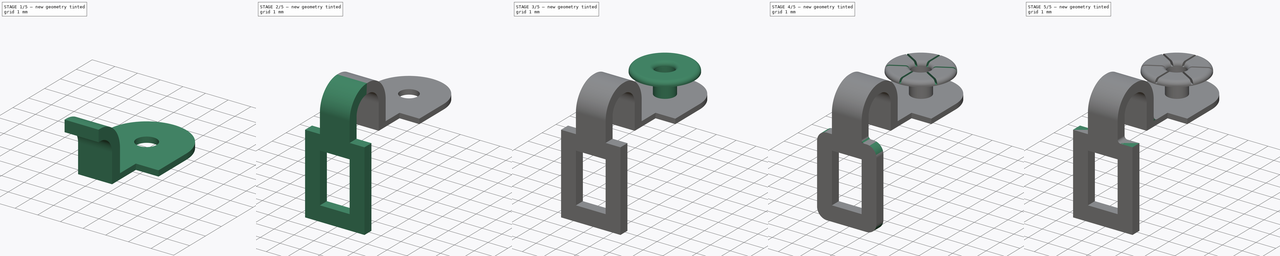
[diagram: build sequence overview — one tinted view per stage of 5, left to right]
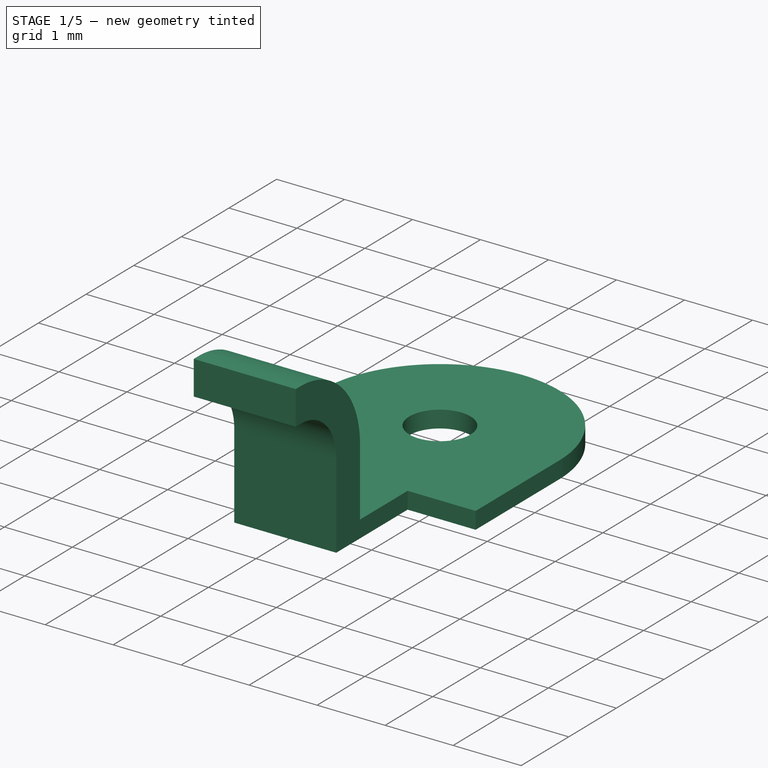
[diagram: stage 1 of 5 — iso view after this stage's code; geometry added in this stage tinted green]
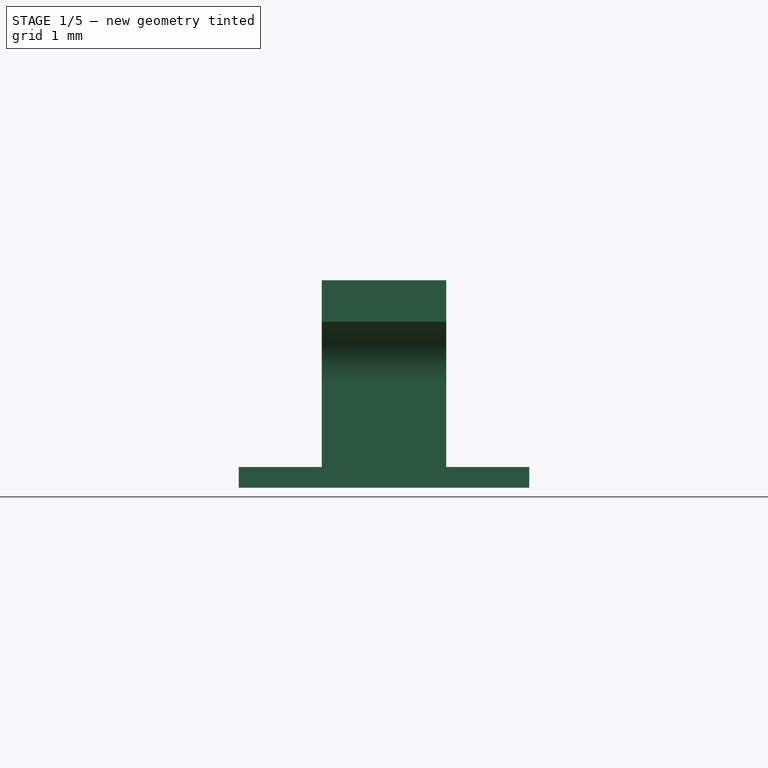
[diagram: stage 1 of 5 — front view after this stage's code; geometry added in this stage tinted green]
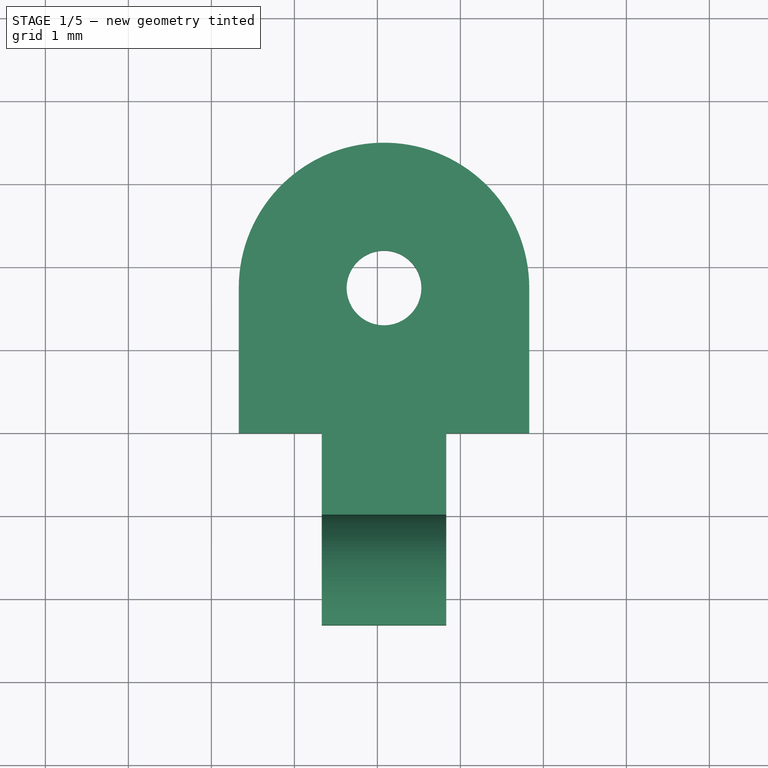
[diagram: stage 1 of 5 — top view after this stage's code; geometry added in this stage tinted green]
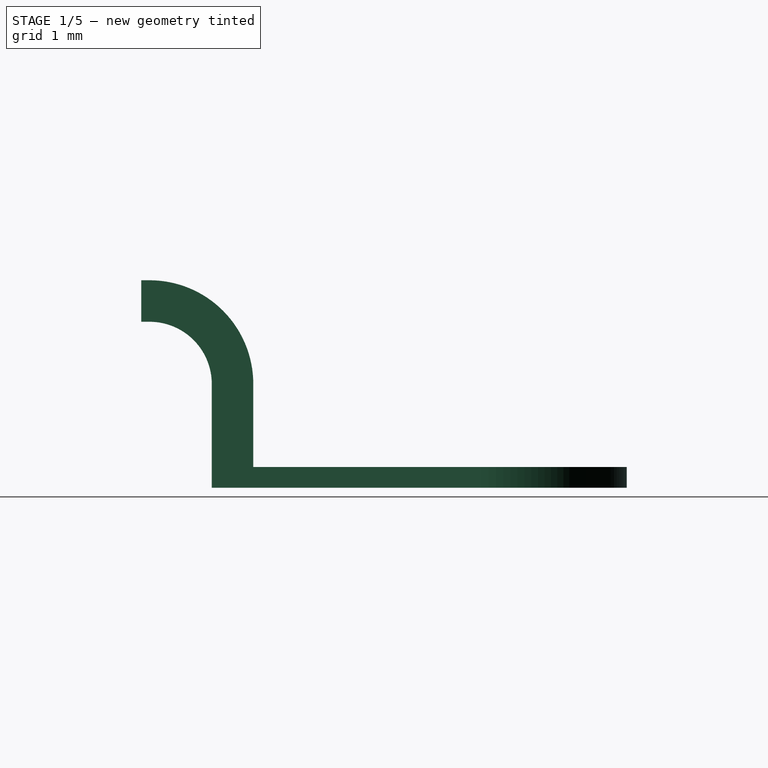
[diagram: stage 1 of 5 — right view after this stage's code; geometry added in this stage tinted green]
FCSTD DOCUMENT  (FreeCAD 0.19R16699 (Git))
Label: RV16_Terminal_Type_10
License: All rights reserved
LicenseURL: http://en.wikipedia.org/wiki/All_rights_reserved
objects: Sketcher::SketchObject×7, PartDesign::Fillet×6, PartDesign::Pad×5, PartDesign::FeaturePython×2, PartDesign::Pocket×2, PartDesign::ShapeBinder×1, PartDesign::Body×1, App::Part×1
note: 31 computed .brp shape members not serialized (recipe doc carries the construction recipe); baked Part::Feature solids carry a one-line shape summary decoded from their .brp

FEATURE [PartDesign::ShapeBinder] ShapeBinder002
  TraceSupport = false
FEATURE [Sketcher::SketchObject] Sketch014
  ExternalGeometry = -> [ShapeBinder002]
  MapMode = 5
  Placement = pos=(0,0,-1) rot=(1,0,0;3.14159rad)
  Support = -> [ShapeBinder002]
  sketch-geometry (12):
    g0: ArcOfCircle CenterX=5.08 CenterY=8.25 CenterZ=0 NormalX=0 NormalY=0 NormalZ=1 AngleXU=0 Radius=1.75 StartAngle=3.14159 EndAngle=6.28319
    g1: GeomPoint X=5.08 Y=6.5 Z=0
    g2: LineSegment StartX=3.33 StartY=8.25 StartZ=0 EndX=3.33 EndY=10 EndZ=0
    g3: LineSegment StartX=6.83 StartY=10 StartZ=0 EndX=6.83 EndY=8.25 EndZ=0
    g4: Circle CenterX=5.08 CenterY=8.25 CenterZ=0 NormalX=0 NormalY=0 NormalZ=1 AngleXU=0 Radius=0.45
    g5: LineSegment StartX=3.33 StartY=10 StartZ=0 EndX=4.33 EndY=10 EndZ=0
    g6: LineSegment StartX=4.33 StartY=10 StartZ=0 EndX=4.33 EndY=10.5 EndZ=0
    g7: LineSegment StartX=4.33 StartY=10.5 StartZ=0 EndX=4.33 EndY=11.5 EndZ=0
    g8: LineSegment StartX=4.33 StartY=11.5 StartZ=0 EndX=5.83 EndY=11.5 EndZ=0
    g9: LineSegment StartX=5.83 StartY=11.5 StartZ=0 EndX=5.83 EndY=10.5 EndZ=0
    g10: LineSegment StartX=5.83 StartY=10.5 StartZ=0 EndX=5.83 EndY=10 EndZ=0
    g11: LineSegment StartX=5.83 StartY=10 StartZ=0 EndX=6.83 EndY=10 EndZ=0
  constraints (31):
    c: Coincident(g0,g-3)
    c: Horizontal(g0,g0)
    c: Horizontal(g0,g0)
    c: PointOnObject(g1,g0)
    c: Vertical(g1,g0)
    c: Tangent(g0,g2) = 1.5708
    c: Coincident(g3,g0)
    c: Vertical(g3)
    c: DistanceY(g1,g3) = 3.5
    c: DistanceX(g2,g3) = 3.5
    c: Coincident(g4,g0)
    c: Radius(g4) = 0.45
    c: Coincident(g5,g2)
    c: Horizontal(g5)
    c: Coincident(g6,g5)
    c: Vertical(g6)
    c: Coincident(g7,g6)
    c: Vertical(g7)
    c: Coincident(g8,g7)
    c: Horizontal(g8)
    c: Coincident(g9,g8)
    c: Vertical(g9)
    c: Coincident(g10,g9)
    c: Coincident(g11,g10)
    c: Coincident(g11,g3)
    c: Horizontal(g11)
    c: Equal(g11,g5)
    c: DistanceY(g9,g9) = 1
    c: Coincident(g6,g-4)
    c: Equal(g2,g3)
    c: Coincident(g9,g-4)
FEATURE [PartDesign::Pad] Pad010
  Length = 0.25
  Length2 = 100
  Profile = -> Sketch014
  Type = 0
FEATURE [Sketcher::SketchObject] Sketch015
  ExternalGeometry = -> [Pad010]
  MapMode = 5
  Placement = pos=(0,0,-1) rot=(0,0,1;0rad)
  Support = -> [Pad010]
  sketch-geometry (4):
    g0: LineSegment StartX=4.33 StartY=-11.5 StartZ=0 EndX=5.83 EndY=-11.5 EndZ=0
    g1: LineSegment StartX=5.83 StartY=-11.5 StartZ=0 EndX=5.83 EndY=-11 EndZ=0
    g2: LineSegment StartX=5.83 StartY=-11 StartZ=0 EndX=4.33 EndY=-11 EndZ=0
    g3: LineSegment StartX=4.33 StartY=-11 StartZ=0 EndX=4.33 EndY=-11.5 EndZ=0
  constraints (11):
    c: Coincident(g0,g1)
    c: Coincident(g1,g2)
    c: Coincident(g2,g3)
    c: Coincident(g3,g0)
    c: Horizontal(g0)
    c: Horizontal(g2)
    c: Vertical(g1)
    c: Vertical(g3)
    c: Coincident(g0,g-4)
    c: DistanceY(g1,g1) = 0.5
    c: PointOnObject(g1,g-5)
FEATURE [PartDesign::Pad] Pad011
  BaseFeature = -> Pad010
  Length = 1
  Length2 = 100
  Profile = -> Sketch015
  Type = 0
FEATURE [PartDesign::FeaturePython] Bend  # WARN: FeaturePython — macro-defined, semantics opaque (R4)
  AutoMiter = true
  BaseFeature = -> Pad011
  BendType = 0
  LengthList = [0.1]
  ReliefFactor = 0.7
  UseReliefFactor = false
  angle = -90
  baseObject = -> Pad011 [Face17]
  bendAList = [-90]
  extend1 = 0
  extend2 = 0
  gap1 = 0
  gap2 = 0
  invert = false
  kfactor = 0.5
  length = 0.1
  miterangle1 = 0
  miterangle2 = 0
  offset = 0
  radius = 0.75
  reliefType = 0
  reliefd = 1
  reliefw = 0.8
  sketchflip = false
  sketchinvert = false
  unfold = false
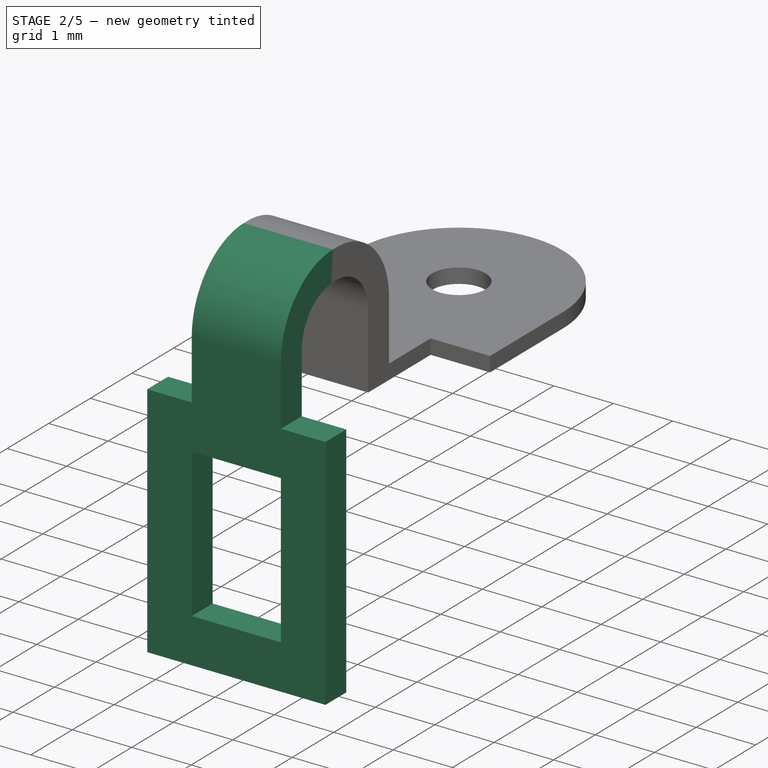
[diagram: stage 2 of 5 — iso view after this stage's code; geometry added in this stage tinted green]
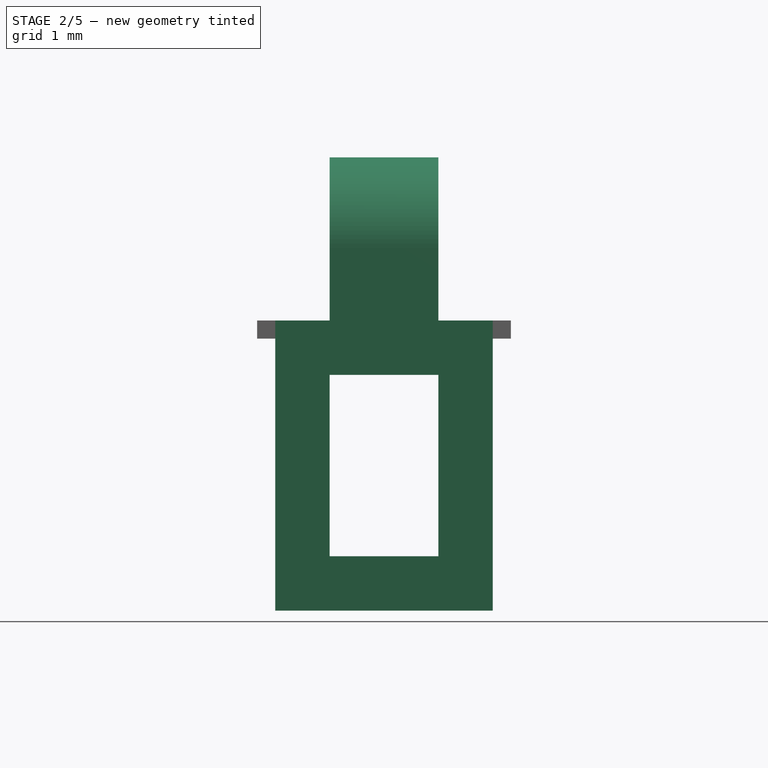
[diagram: stage 2 of 5 — front view after this stage's code; geometry added in this stage tinted green]
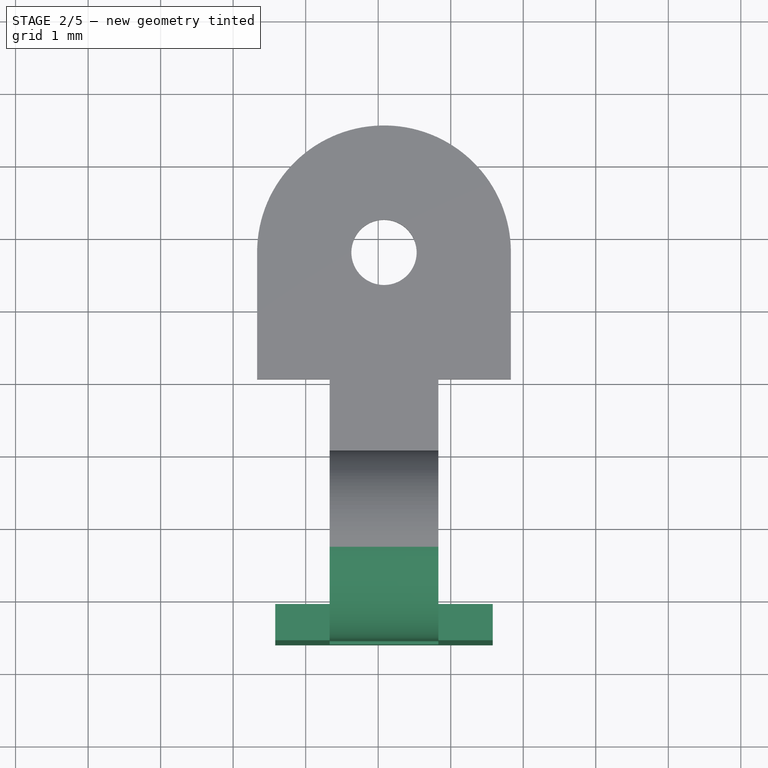
[diagram: stage 2 of 5 — top view after this stage's code; geometry added in this stage tinted green]
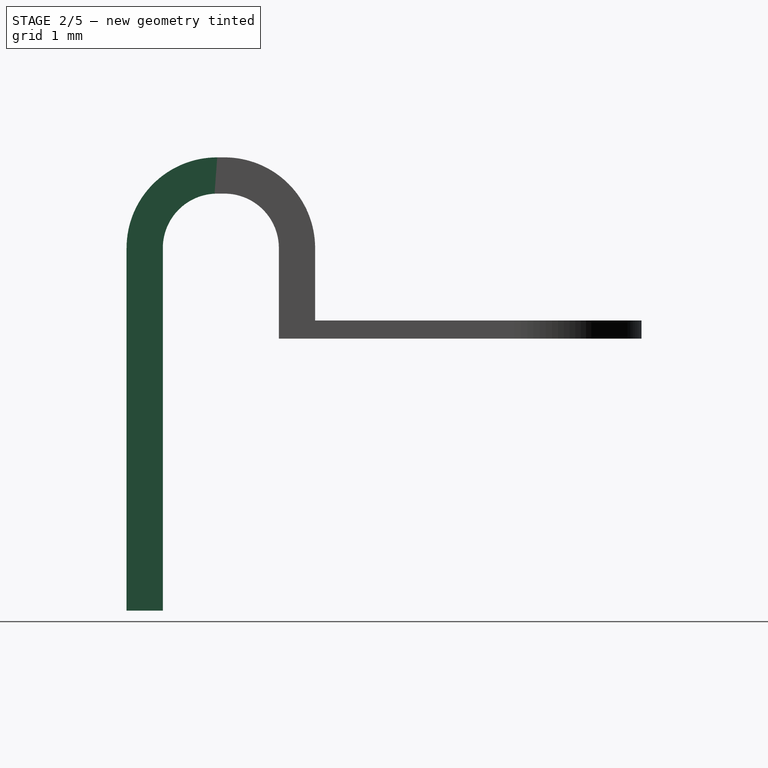
[diagram: stage 2 of 5 — right view after this stage's code; geometry added in this stage tinted green]
FEATURE [PartDesign::FeaturePython] Bend001  # WARN: FeaturePython — macro-defined, semantics opaque (R4)
  AutoMiter = true
  BaseFeature = -> Bend
  BendType = 0
  LengthList = [1]
  ReliefFactor = 0.7
  UseReliefFactor = false
  angle = -90
  baseObject = -> Bend [Face3]
  bendAList = [-90]
  extend1 = 0
  extend2 = 0
  gap1 = 0
  gap2 = 0
  invert = false
  kfactor = 0.5
  length = 1
  miterangle1 = 0
  miterangle2 = 0
  offset = 0
  radius = 0.75
  reliefType = 0
  reliefd = 1
  reliefw = 0.8
  sketchflip = false
  sketchinvert = false
  unfold = false
FEATURE [Sketcher::SketchObject] Sketch016
  ExternalGeometry = -> [Bend001]
  MapMode = 5
  Placement = pos=(0,-1e-16,-1) rot=(1,0,0;3.14159rad)
  Support = -> [Bend001]
  sketch-geometry (12):
    g0: LineSegment StartX=3.58 StartY=13.1 StartZ=0 EndX=6.58 EndY=13.1 EndZ=0
    g1: LineSegment StartX=6.58 StartY=13.1 StartZ=0 EndX=6.58 EndY=13.6 EndZ=0
    g2: LineSegment StartX=6.58 StartY=13.6 StartZ=0 EndX=3.58 EndY=13.6 EndZ=0
    g3: LineSegment StartX=3.58 StartY=13.6 StartZ=0 EndX=3.58 EndY=13.1 EndZ=0
    g4: LineSegment [constr] StartX=5.83 StartY=13.6 StartZ=0 EndX=4.33 EndY=13.1 EndZ=0
    g5: LineSegment [constr] StartX=5.83 StartY=13.1 StartZ=0 EndX=4.33 EndY=13.6 EndZ=0
    g6: GeomPoint X=5.08 Y=13.35 Z=0
    g7: GeomPoint X=5.08 Y=13.35 Z=0
    g8: LineSegment [constr] StartX=3.58 StartY=13.6 StartZ=0 EndX=6.58 EndY=13.1 EndZ=0
    g9: LineSegment [constr] StartX=6.58 StartY=13.6 StartZ=0 EndX=3.58 EndY=13.1 EndZ=0
    g10: GeomPoint X=5.08 Y=13.35 Z=0
    g11: GeomPoint X=5.08 Y=13.35 Z=0
  constraints (25):
    c: Coincident(g0,g1)
    c: Coincident(g1,g2)
    c: Coincident(g2,g3)
    c: Coincident(g3,g0)
    c: Horizontal(g0)
    c: Horizontal(g2)
    c: Vertical(g1)
    c: Vertical(g3)
    c: DistanceX(g2,g2) = 3
    c: PointOnObject(g-4,g2)
    c: PointOnObject(g-5,g0)
    c: Coincident(g4,g-4)
    c: Coincident(g4,g-6)
    c: Coincident(g5,g-5)
    c: Coincident(g5,g-6)
    c: PointOnObject(g6,g4)
    c: PointOnObject(g7,g5)
    c: Coincident(g6,g7)
    c: Coincident(g8,g2)
    c: Coincident(g8,g0)
    c: Coincident(g9,g1)
    c: Coincident(g9,g0)
    c: PointOnObject(g10,g9)
    c: Coincident(g11,g10)
    c: Coincident(g10,g6)
FEATURE [PartDesign::Pad] Pad012
  BaseFeature = -> Bend001
  Length = 4
  Length2 = 100
  Profile = -> Sketch016
  Type = 0
FEATURE [Sketcher::SketchObject] Sketch017
  ExternalGeometry = -> [Pad012]
  MapMode = 5
  Placement = pos=(0,-13.6,3e-15) rot=(1,0,0;1.5708rad)
  Support = -> [Pad012]
  sketch-geometry (12):
    g0: LineSegment [constr] StartX=6.58 StartY=-1 StartZ=0 EndX=3.58 EndY=-5 EndZ=0
    g1: LineSegment [constr] StartX=6.58 StartY=-5 StartZ=0 EndX=3.58 EndY=-1 EndZ=0
    g2: GeomPoint X=5.08 Y=-3 Z=0
    g3: GeomPoint X=5.08 Y=-3 Z=0
    g4: LineSegment StartX=4.33 StartY=-1.75 StartZ=0 EndX=5.83 EndY=-1.75 EndZ=0
    g5: LineSegment StartX=5.83 StartY=-1.75 StartZ=0 EndX=5.83 EndY=-4.25 EndZ=0
    g6: LineSegment StartX=5.83 StartY=-4.25 StartZ=0 EndX=4.33 EndY=-4.25 EndZ=0
    g7: LineSegment StartX=4.33 StartY=-4.25 StartZ=0 EndX=4.33 EndY=-1.75 EndZ=0
    g8: LineSegment [constr] StartX=5.83 StartY=-1.75 StartZ=0 EndX=4.33 EndY=-4.25 EndZ=0
    g9: LineSegment [constr] StartX=5.83 StartY=-4.25 StartZ=0 EndX=4.33 EndY=-1.75 EndZ=0
    g10: GeomPoint X=5.08 Y=-3 Z=0
    g11: GeomPoint X=5.08 Y=-3 Z=0
  constraints (25):
    c: Coincident(g0,g-6)
    c: Coincident(g0,g-4)
    c: Coincident(g1,g-5)
    c: Coincident(g1,g-8)
    c: PointOnObject(g2,g0)
    c: PointOnObject(g3,g1)
    c: Coincident(g2,g3)
    c: Coincident(g4,g5)
    c: Coincident(g5,g6)
    c: Coincident(g6,g7)
    c: Coincident(g7,g4)
    c: Horizontal(g4)
    c: Horizontal(g6)
    c: Vertical(g5)
    c: Vertical(g7)
    c: Coincident(g8,g4)
    c: Coincident(g8,g6)
    c: Coincident(g9,g5)
    c: Coincident(g9,g4)
    c: PointOnObject(g10,g9)
    c: PointOnObject(g11,g8)
    c: Coincident(g11,g10)
    c: Coincident(g10,g2)
    c: DistanceX(g4,g4) = 1.5
    c: DistanceY(g5,g5) = 2.5
FEATURE [PartDesign::Pocket] Pocket004
  BaseFeature = -> Pad012
  Length = 5
  Length2 = 100
  Profile = -> Sketch017
  Type = 2
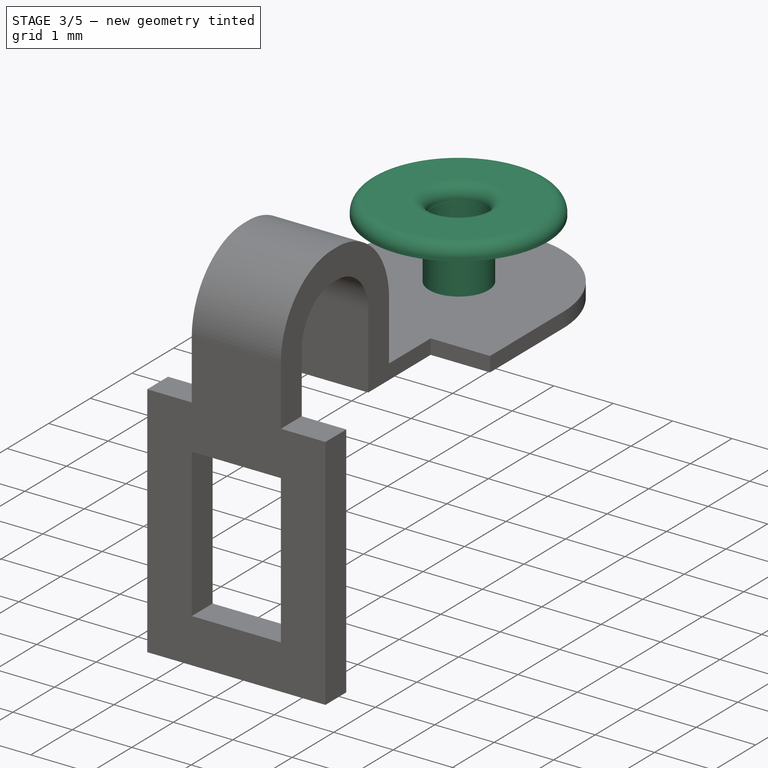
[diagram: stage 3 of 5 — iso view after this stage's code; geometry added in this stage tinted green]
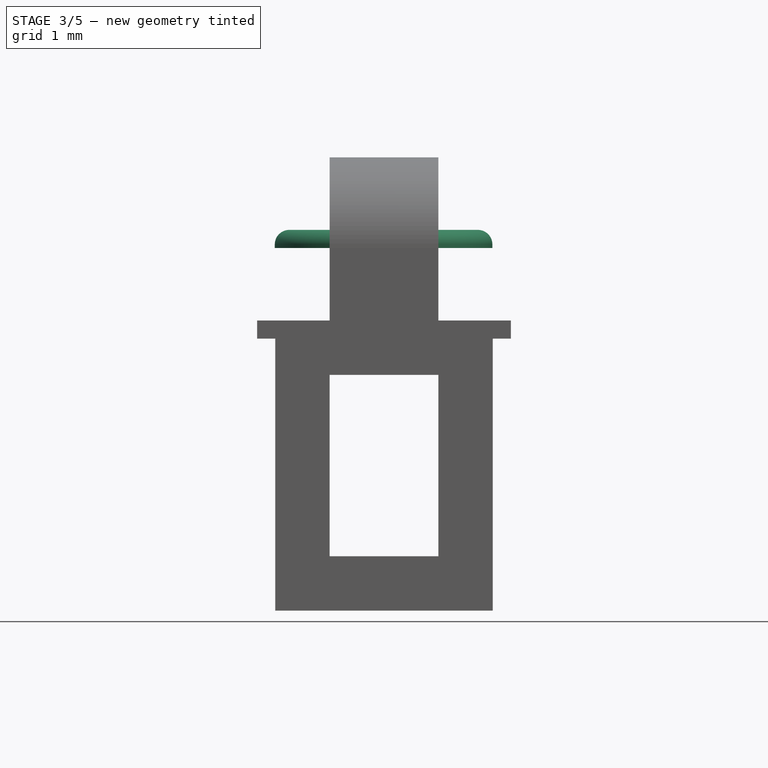
[diagram: stage 3 of 5 — front view after this stage's code; geometry added in this stage tinted green]
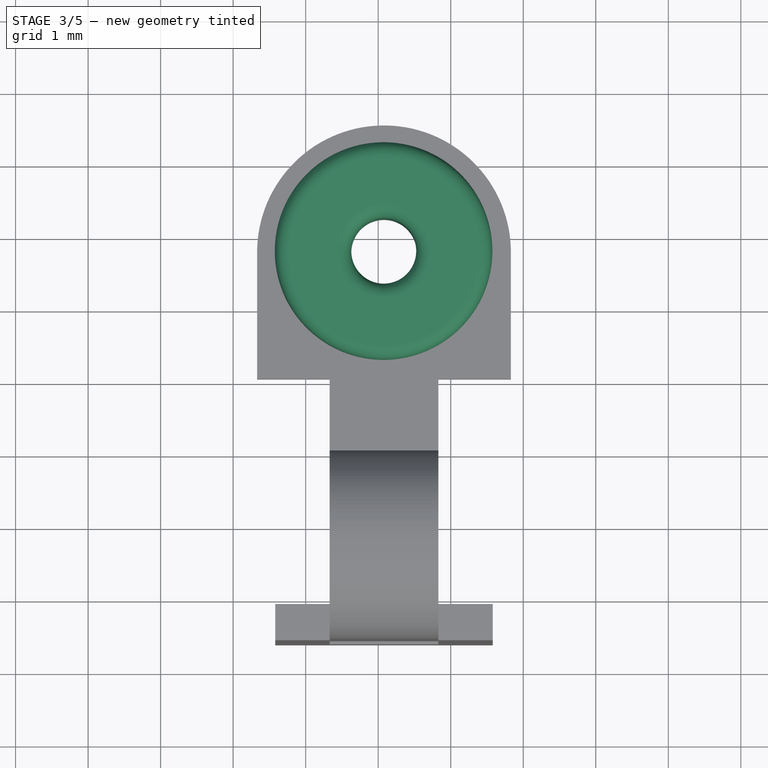
[diagram: stage 3 of 5 — top view after this stage's code; geometry added in this stage tinted green]
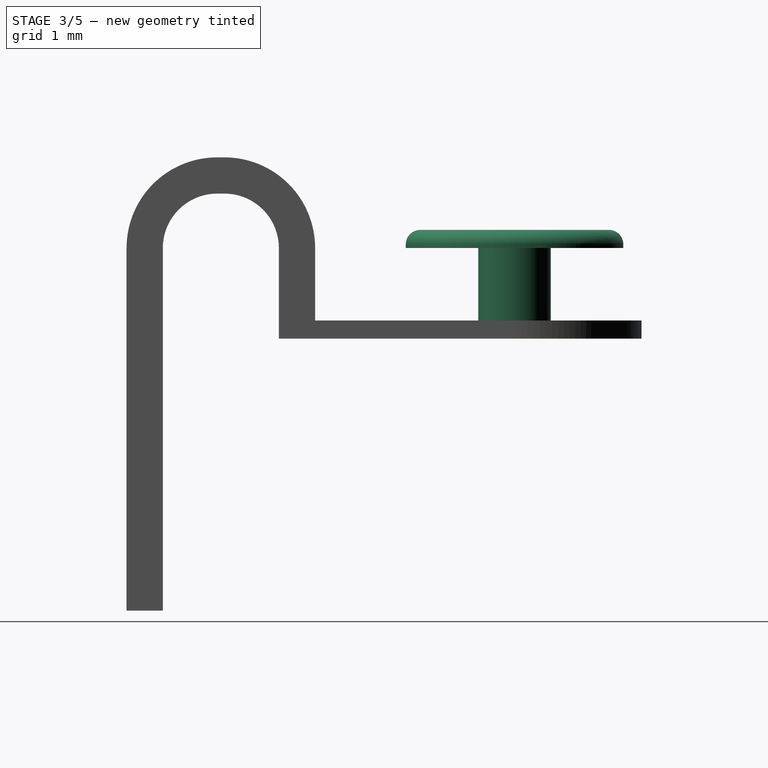
[diagram: stage 3 of 5 — right view after this stage's code; geometry added in this stage tinted green]
FEATURE [Sketcher::SketchObject] Sketch018
  ExternalGeometry = -> [Pocket004]
  MapMode = 5
  Placement = pos=(0,0,-1) rot=(0,0,1;0rad)
  Support = -> [Pocket004]
  sketch-geometry (2):
    g0: Circle CenterX=5.08 CenterY=-8.25 CenterZ=0 NormalX=0 NormalY=0 NormalZ=1 AngleXU=0 Radius=0.45
    g1: Circle CenterX=5.08 CenterY=-8.25 CenterZ=0 NormalX=0 NormalY=0 NormalZ=1 AngleXU=0 Radius=0.5
  constraints (4):
    c: Coincident(g0,g-3)
    c: Coincident(g1,g0)
    c: Radius(g0) = 0.45
    c: Radius(g1) = 0.5
FEATURE [PartDesign::Pad] Pad013
  BaseFeature = -> Pocket004
  Length = 1
  Length2 = 100
  Profile = -> Sketch018
  Type = 0
FEATURE [Sketcher::SketchObject] Sketch019
  ExternalGeometry = -> [Pad013]
  MapMode = 5
  Support = -> [Pad013]
  sketch-geometry (2):
    g0: Circle CenterX=5.07422 CenterY=-8.25022 CenterZ=0 NormalX=0 NormalY=0 NormalZ=1 AngleXU=0 Radius=1.5
    g1: Circle CenterX=5.07422 CenterY=-8.25022 CenterZ=0 NormalX=0 NormalY=0 NormalZ=1 AngleXU=0 Radius=0.45
  constraints (3):
    c: Radius(g0) = 1.5
    c: Coincident(g1,g0)
    c: Radius(g1) = 0.45
FEATURE [PartDesign::Pad] Pad014
  BaseFeature = -> Pad013
  Length = 0.25
  Length2 = 100
  Profile = -> Sketch019
  Type = 0
FEATURE [Sketcher::SketchObject] Sketch020
  ExternalGeometry = -> [Pad014]
  MapMode = 5
  Placement = pos=(0,0,0.25) rot=(0,0,1;0rad)
  Support = -> [Pad014]
  sketch-geometry (24):
    g0: LineSegment StartX=5.02422 StartY=-6.25022 StartZ=0 EndX=5.12422 EndY=-6.25022 EndZ=0
    g1: LineSegment StartX=5.12422 StartY=-6.25022 StartZ=0 EndX=5.12422 EndY=-10.2502 EndZ=0
    g2: LineSegment StartX=5.12422 StartY=-10.2502 StartZ=0 EndX=5.02422 EndY=-10.2502 EndZ=0
    g3: LineSegment StartX=5.02422 StartY=-10.2502 StartZ=0 EndX=5.02422 EndY=-6.25022 EndZ=0
    g4: LineSegment [constr] StartX=5.12422 StartY=-6.25022 StartZ=0 EndX=5.02422 EndY=-10.2502 EndZ=0
    g5: LineSegment [constr] StartX=5.12422 StartY=-10.2502 StartZ=0 EndX=5.02422 EndY=-6.25022 EndZ=0
    g6: GeomPoint X=5.07422 Y=-8.25022 Z=0
    g7: GeomPoint X=5.07422 Y=-8.25022 Z=0
    g8: LineSegment StartX=6.83127 StartY=-7.29352 StartZ=0 EndX=6.78127 EndY=-7.20692 EndZ=0
    g9: LineSegment StartX=6.78127 StartY=-7.20692 StartZ=0 EndX=3.31717 EndY=-9.20692 EndZ=0
    g10: LineSegment StartX=6.83127 StartY=-7.29352 StartZ=0 EndX=3.36717 EndY=-9.29352 EndZ=0
    g11: LineSegment StartX=3.36717 StartY=-9.29352 StartZ=0 EndX=3.31717 EndY=-9.20692 EndZ=0
    g12: LineSegment [constr] StartX=6.78127 StartY=-7.20692 StartZ=0 EndX=3.36717 EndY=-9.29352 EndZ=0
    g13: LineSegment [constr] StartX=3.31717 StartY=-9.20692 StartZ=0 EndX=6.83127 EndY=-7.29352 EndZ=0
    g14: GeomPoint X=5.07422 Y=-8.25022 Z=0
    g15: GeomPoint X=5.07422 Y=-8.25022 Z=0
    g16: LineSegment StartX=3.36717 StartY=-7.20692 StartZ=0 EndX=3.31717 EndY=-7.29352 EndZ=0
    g17: LineSegment StartX=3.31717 StartY=-7.29352 StartZ=0 EndX=6.78127 EndY=-9.29352 EndZ=0
    g18: LineSegment StartX=6.78127 StartY=-9.29352 StartZ=0 EndX=6.83127 EndY=-9.20692 EndZ=0
    g19: LineSegment StartX=6.83127 StartY=-9.20692 StartZ=0 EndX=3.36717 EndY=-7.20692 EndZ=0
    g20: LineSegment [constr] StartX=3.36717 StartY=-7.20692 StartZ=0 EndX=6.78127 EndY=-9.29352 EndZ=0
    g21: LineSegment [constr] StartX=6.83127 StartY=-9.20692 StartZ=0 EndX=3.31717 EndY=-7.29352 EndZ=0
    g22: GeomPoint X=5.07422 Y=-8.25022 Z=0
    g23: GeomPoint X=5.07422 Y=-8.25022 Z=0
  constraints (54):
    c: Coincident(g0,g1)
    c: Coincident(g1,g2)
    c: Coincident(g2,g3)
    c: Coincident(g3,g0)
    c: Horizontal(g0)
    c: Horizontal(g2)
    c: Vertical(g1)
    c: Vertical(g3)
    c: Coincident(g4,g0)
    c: Coincident(g4,g2)
    c: Coincident(g5,g1)
    c: Coincident(g5,g0)
    c: PointOnObject(g6,g4)
    c: PointOnObject(g7,g5)
    c: DistanceX(g0,g0) = 0.1
    c: DistanceY(g1,g1) = 4
    c: Coincident(g6,g7)
    c: Coincident(g6,g-3)
    c: Coincident(g9,g8)
    c: Coincident(g10,g8)
    c: Coincident(g11,g10)
    c: Coincident(g11,g9)
    c: Perpendicular(g9,g11)
    c: Perpendicular(g10,g8)
    c: Perpendicular(g9,g8)
    c: Angle(g-1,g9) = 0.523599
    c: Distance(g8) = 0.1
    c: Distance(g10) = 4
    c: Coincident(g12,g8)
    c: Coincident(g12,g10)
    c: Coincident(g13,g9)
    c: Coincident(g13,g8)
    c: PointOnObject(g14,g12)
    c: PointOnObject(g15,g13)
    c: Coincident(g15,g14)
    c: Coincident(g14,g6)
    c: Coincident(g16,g17)
    c: Coincident(g17,g18)
    c: Coincident(g18,g19)
    c: Coincident(g19,g16)
    c: Perpendicular(g16,g19)
    c: Perpendicular(g16,g17)
    c: Perpendicular(g17,g18)
    c: Distance(g16) = 0.1
    c: Distance(g19) = 4
    c: Coincident(g20,g16)
    c: Coincident(g20,g17)
    c: Coincident(g21,g18)
    c: Coincident(g21,g16)
    c: PointOnObject(g22,g21)
    c: PointOnObject(g23,g20)
    c: Coincident(g22,g23)
    c: Angle(g-1,g19) = 2.61799
    c: Coincident(g22,g6)
FEATURE [PartDesign::Fillet] Fillet
  Base = -> Pad014 [Edge117,Edge115]
  BaseFeature = -> Pad014
  Radius = 0.2
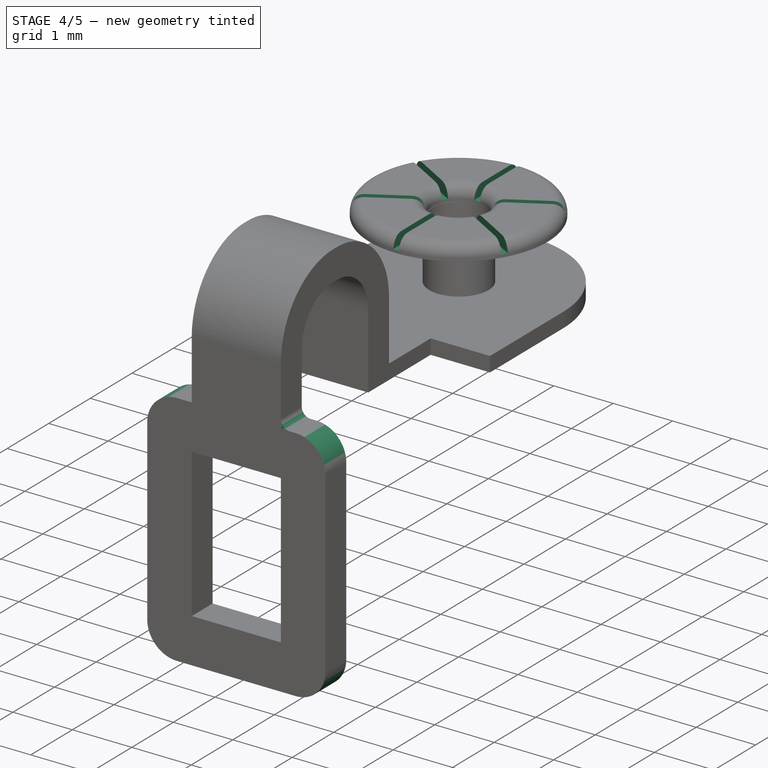
[diagram: stage 4 of 5 — iso view after this stage's code; geometry added in this stage tinted green]
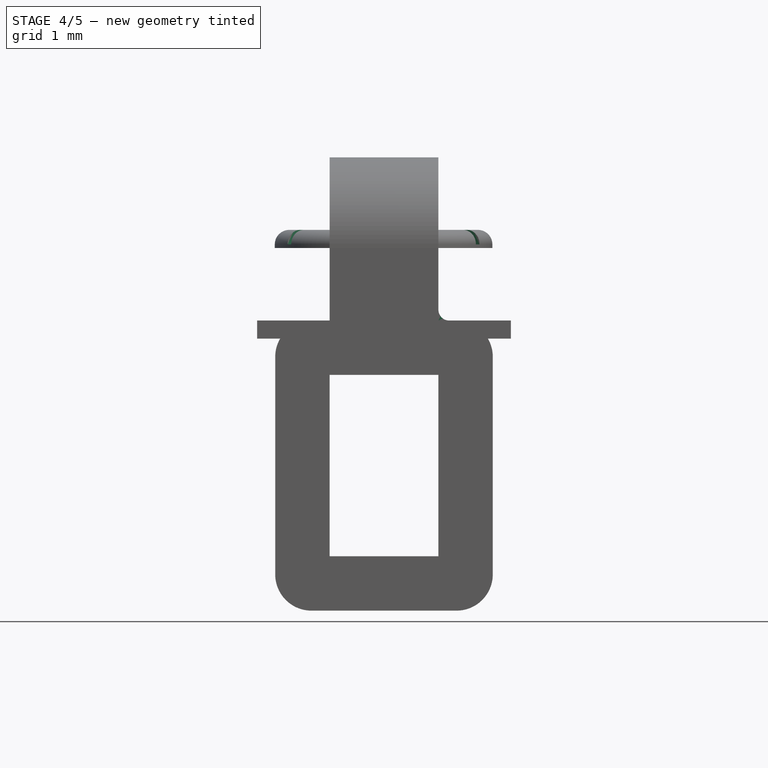
[diagram: stage 4 of 5 — front view after this stage's code; geometry added in this stage tinted green]
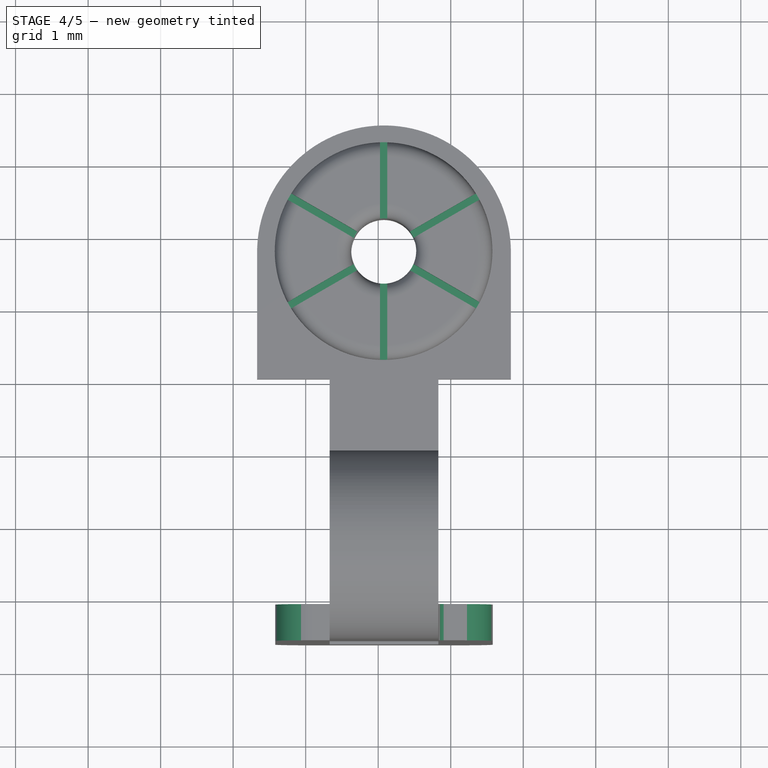
[diagram: stage 4 of 5 — top view after this stage's code; geometry added in this stage tinted green]
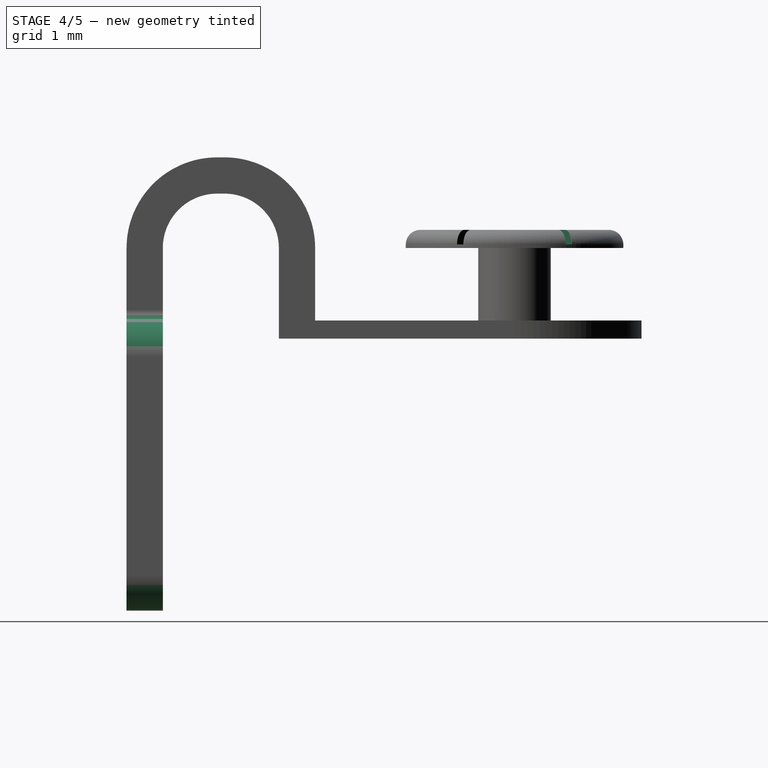
[diagram: stage 4 of 5 — right view after this stage's code; geometry added in this stage tinted green]
FEATURE [PartDesign::Pocket] Pocket005
  BaseFeature = -> Fillet
  Length = 0.2
  Length2 = 100
  Profile = -> Sketch020
  Type = 0
FEATURE [PartDesign::Fillet] Fillet002
  Base = -> Pocket005 [Edge191,Edge189,Edge196,Edge194]
  BaseFeature = -> Pocket005
  Radius = 0.5
FEATURE [PartDesign::Fillet] Fillet003
  Base = -> Fillet002 [Edge22]
  BaseFeature = -> Fillet002
  Radius = 0.15
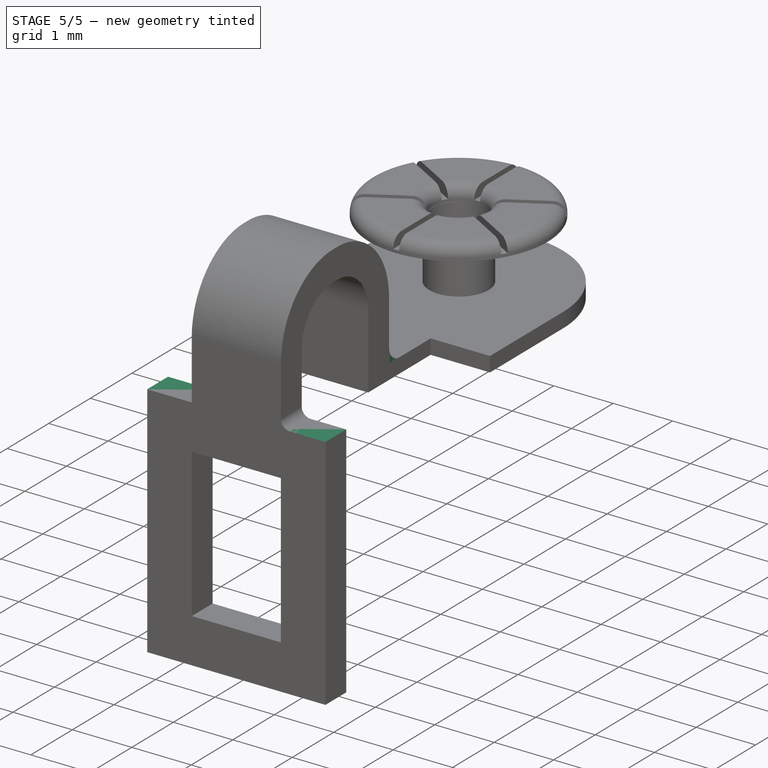
[diagram: stage 5 of 5 — iso view after this stage's code; geometry added in this stage tinted green]
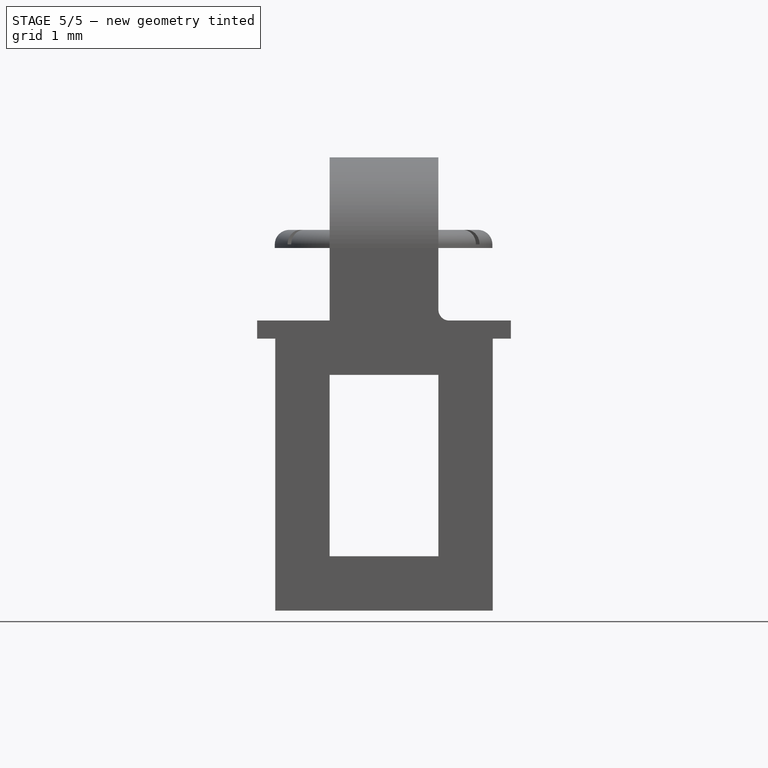
[diagram: stage 5 of 5 — front view after this stage's code; geometry added in this stage tinted green]
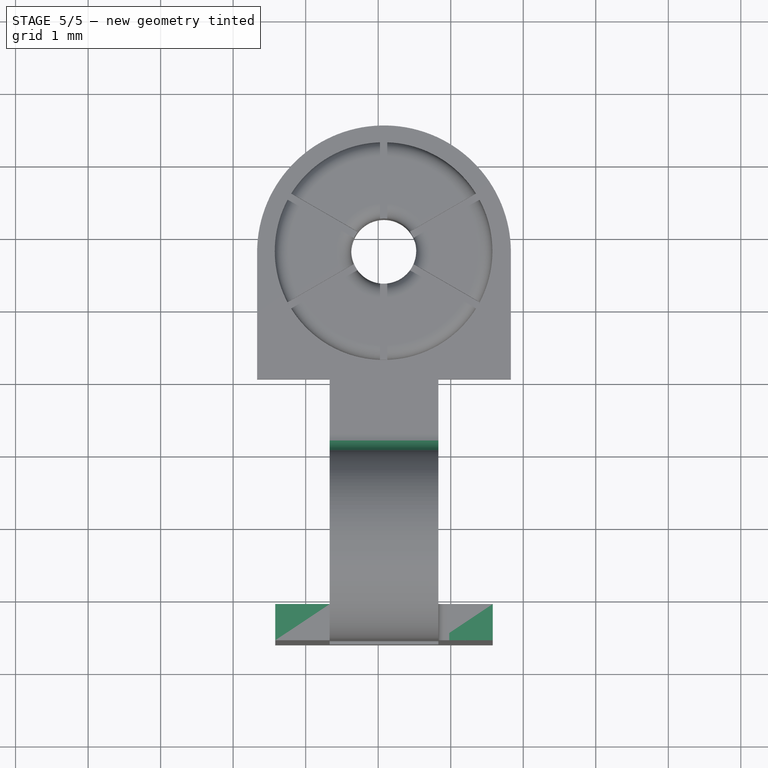
[diagram: stage 5 of 5 — top view after this stage's code; geometry added in this stage tinted green]
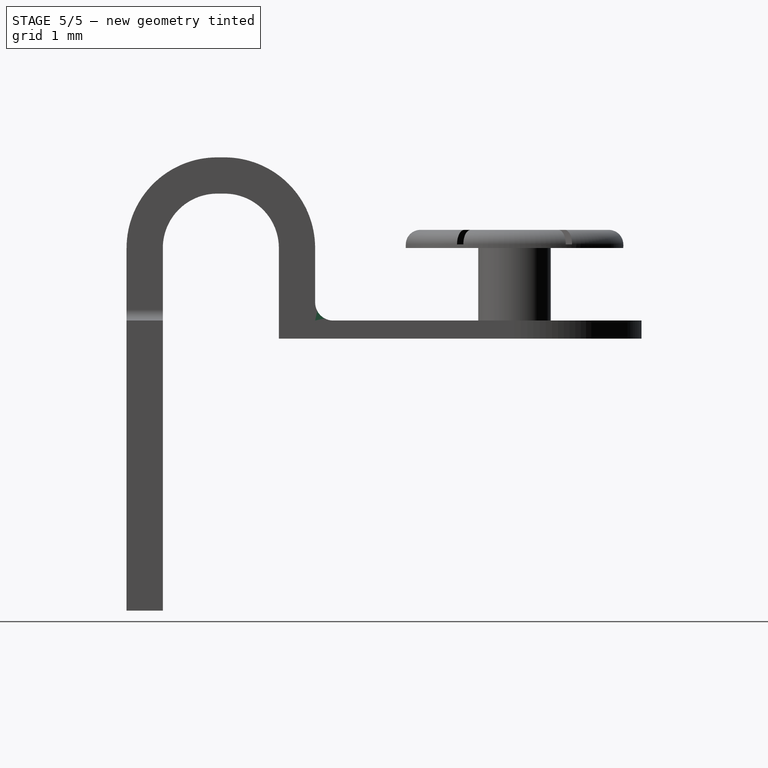
[diagram: stage 5 of 5 — right view after this stage's code; geometry added in this stage tinted green]
FEATURE [PartDesign::Fillet] Fillet001
  Base = -> Pocket005 [Edge140]
  BaseFeature = -> Pocket005
  Radius = 0.1
FEATURE [PartDesign::Fillet] Fillet004
  Base = -> Fillet003 [Edge119]
  BaseFeature = -> Fillet003
  Radius = 0.15
FEATURE [PartDesign::Fillet] Fillet005
  Base = -> Fillet004 [Edge30]
  BaseFeature = -> Fillet004
  Radius = 0.25
FEATURE [PartDesign::Body] Body003  label="RV16_Terminal_Type_10_"
  Group = -> [ShapeBinder002,Sketch014,Pad010,Sketch015,Pad011,Bend,Bend001,Sketch016,Pad012,Sketch017,Pocket004,Sketch018,Pad013,Sketch019,Pad014,Sketch020,Fillet,Pocket005,Fillet001,Fillet002,Fillet003,Fillet004,Fillet005]
  Origin = -> Origin003
  Tip = -> Fillet005
FEATURE [App::Part] Part  label="RV16_Terminal_Type_10"
  Group = -> [Body003]
  Origin = -> Origin
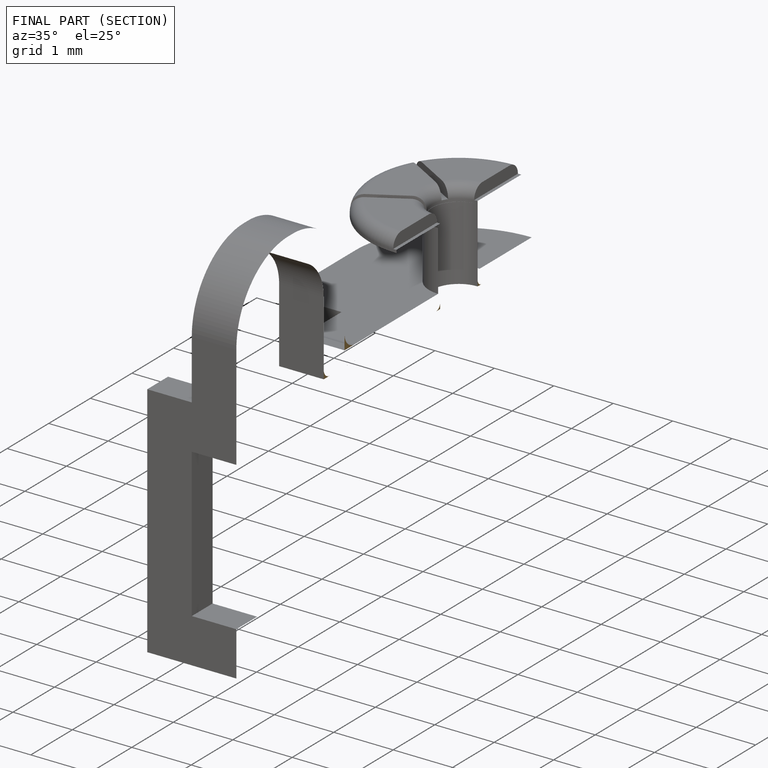
[diagram: finished part — half-section view (interior)]
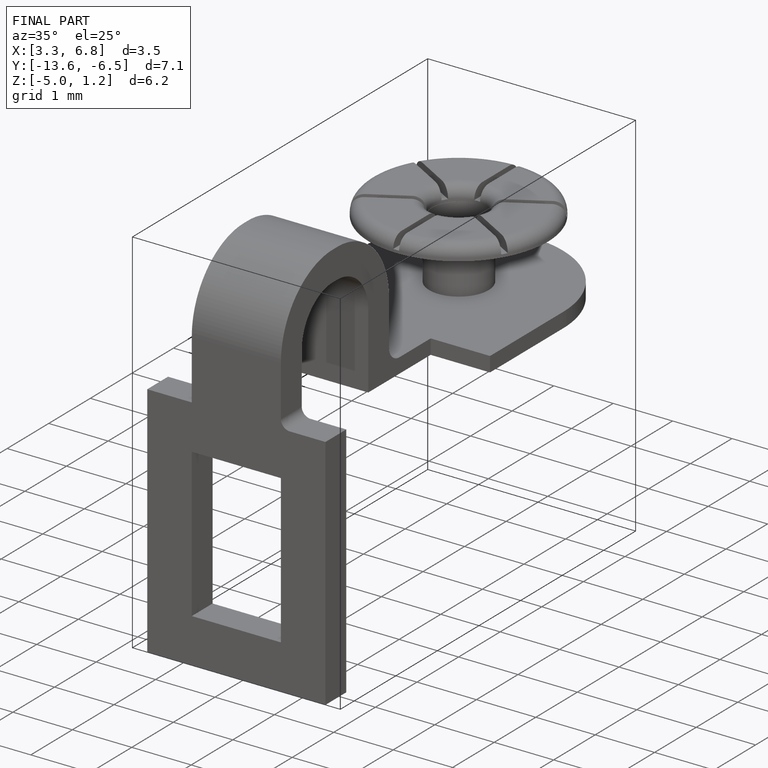
[diagram: finished part — iso view with bounding-box wireframe]
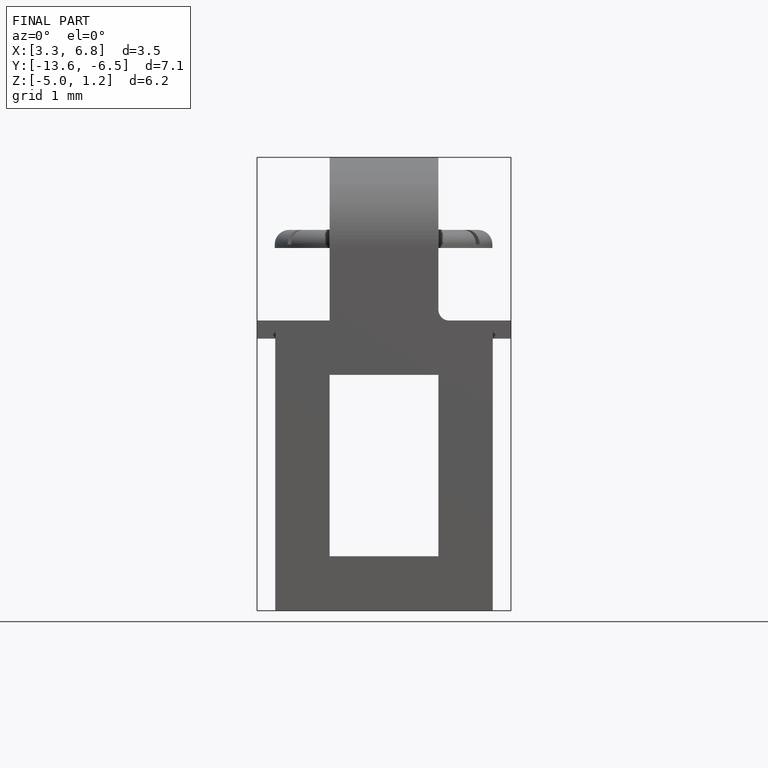
[diagram: finished part — front view with bounding-box wireframe]
